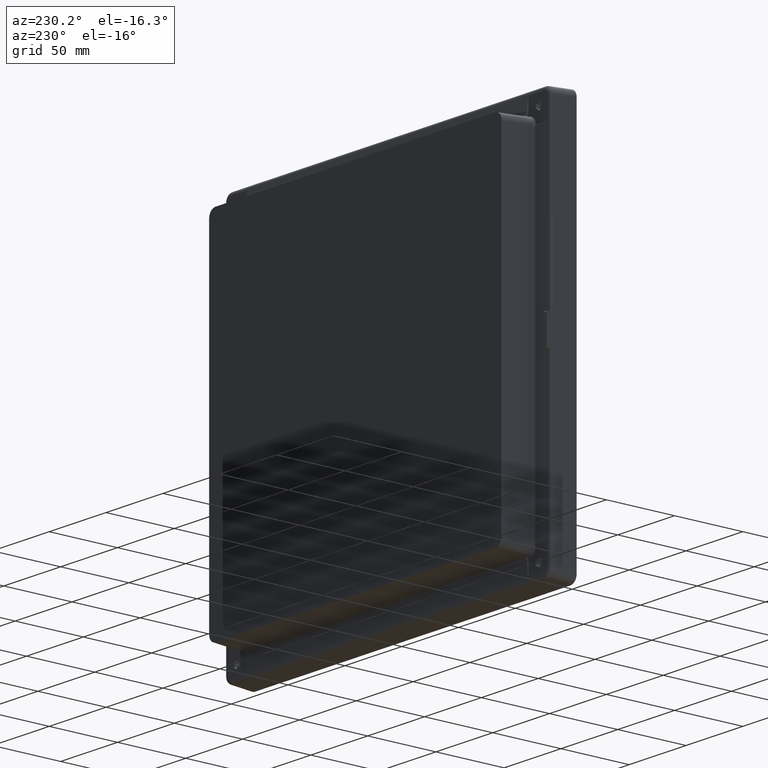
[diagram: clean part render]
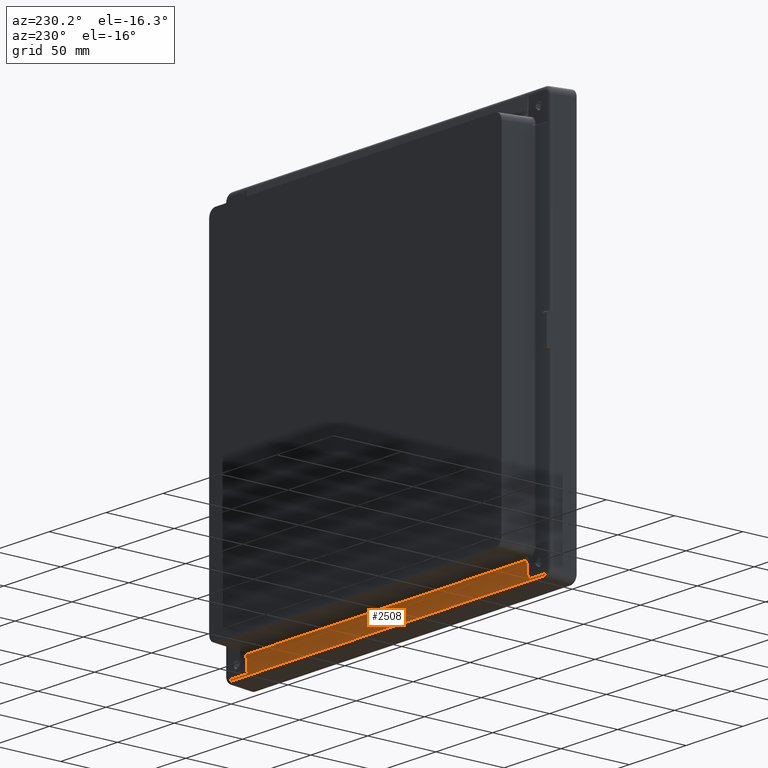
[diagram: same view with one face highlighted and labeled with its STEP entity id]
A machine part, auxiliary view. The second image highlights one B-rep face of the part: STEP entity #2508.
In plain terms, the highlighted planar face has unit normal (0, 0.9954, -0.0958).
Its self-contained STEP definition (entity closure, byte-faithful):
#6 = VERTEX_POINT ( 'NONE', #5151 ) ;
#7 = EDGE_CURVE ( 'NONE', #8, #6, #5180, .T. ) ;
#8 = VERTEX_POINT ( 'NONE', #5179 ) ;
#1545 = DIRECTION ( 'NONE',  ( 0.005022999675629500500, 0.09584454339323117400, 0.9953836411032690500 ) ) ;
#1546 = VECTOR ( 'NONE', #1545, 1000.000000000000100 ) ;
#1547 = CARTESIAN_POINT ( 'NONE',  ( -123.5068260029025900, 10.79896555757917300, -136.1783476383560000 ) ) ;
#1549 = LINE ( 'NONE', #1547, #1546 ) ;
#1555 = VERTEX_POINT ( 'NONE', #9857 ) ;
#1561 = VERTEX_POINT ( 'NONE', #9868 ) ;
#1564 = EDGE_CURVE ( 'NONE', #1555, #1561, #9901, .T. ) ;
#1565 = CARTESIAN_POINT ( 'NONE',  ( -123.5349119825286600, 10.26305314132461900, -141.7440108813360400 ) ) ;
#1580 = CARTESIAN_POINT ( 'NONE',  ( -123.4787400232765200, 11.33487797383372700, -130.6126843953760200 ) ) ;
#1985 = VERTEX_POINT ( 'NONE', #11020 ) ;
#2065 = EDGE_CURVE ( 'NONE', #5124, #1985, #11355, .T. ) ;
#2112 = VERTEX_POINT ( 'NONE', #11424 ) ;
#2116 = EDGE_CURVE ( 'NONE', #2112, #1985, #11426, .T. ) ;
#2145 = CARTESIAN_POINT ( 'NONE',  ( -138.0540984395500200, 10.26305314132461900, -141.7440108813360400 ) ) ;
#2147 = DIRECTION ( 'NONE',  ( -0.7054734583899082700, -0.06792936783698919100, -0.7054734583899308100 ) ) ;
#2148 = VECTOR ( 'NONE', #2147, 1000.000000000000000 ) ;
#2151 = CARTESIAN_POINT ( 'NONE',  ( -138.4889559685815100, 10.22118112375264300, -142.1788684103675300 ) ) ;
#2152 = LINE ( 'NONE', #2151, #2148 ) ;
#2480 = ORIENTED_EDGE ( 'NONE', *, *, #2065, .T. ) ;
#2482 = ORIENTED_EDGE ( 'NONE', *, *, #2116, .F. ) ;
#2483 = ORIENTED_EDGE ( 'NONE', *, *, #2484, .T. ) ;
#2484 = EDGE_CURVE ( 'NONE', #2112, #2485, #12249, .T. ) ;
#2485 = VERTEX_POINT ( 'NONE', #12245 ) ;
#2486 = ORIENTED_EDGE ( 'NONE', *, *, #2487, .T. ) ;
#2487 = EDGE_CURVE ( 'NONE', #2485, #1555, #12244, .T. ) ;
#2488 = ORIENTED_EDGE ( 'NONE', *, *, #1564, .T. ) ;
#2489 = ORIENTED_EDGE ( 'NONE', *, *, #2500, .T. ) ;
#2490 = ORIENTED_EDGE ( 'NONE', *, *, #7, .F. ) ;
#2491 = ORIENTED_EDGE ( 'NONE', *, *, #11711, .F. ) ;
#2500 = EDGE_CURVE ( 'NONE', #1561, #6, #12234, .T. ) ;
#2508 = ADVANCED_FACE ( 'NONE', ( #12281 ), #12279, .T. ) ;
#2509 = EDGE_LOOP ( 'NONE', ( #2480, #2482, #2483, #2486, #2488, #2489, #2490, #2491, #2574, #2576 ) ) ;
#2559 = DIRECTION ( 'NONE',  ( -1.000000000000000000, 0.0000000000000000000, 0.0000000000000000000 ) ) ;
#2560 = VECTOR ( 'NONE', #2559, 1000.000000000000000 ) ;
#2562 = CARTESIAN_POINT ( 'NONE',  ( -130.7945052110393400, 10.26305314132461900, -141.7440108813360400 ) ) ;
#2564 = LINE ( 'NONE', #2562, #2560 ) ;
#2574 = ORIENTED_EDGE ( 'NONE', *, *, #11795, .F. ) ;
#2576 = ORIENTED_EDGE ( 'NONE', *, *, #5113, .T. ) ;
#5107 = VERTEX_POINT ( 'NONE', #1565 ) ;
#5113 = EDGE_CURVE ( 'NONE', #5107, #5124, #1549, .T. ) ;
#5124 = VERTEX_POINT ( 'NONE', #1580 ) ;
#5151 = CARTESIAN_POINT ( 'NONE',  ( -137.9236508560150300, 10.16517196802754200, -142.7605457326960200 ) ) ;
#5170 = CARTESIAN_POINT ( 'NONE',  ( -137.9236508560150300, 10.16517196802754200, -142.7605457326960200 ) ) ;
#5171 = CARTESIAN_POINT ( 'NONE',  ( -138.0367413943828600, 10.16517322832616100, -142.7605326439944000 ) ) ;
#5172 = CARTESIAN_POINT ( 'NONE',  ( -138.2616409691924300, 10.16622243318247200, -142.7496362349431500 ) ) ;
#5173 = CARTESIAN_POINT ( 'NONE',  ( -138.5970484002153600, 10.17096336329997500, -142.7003997931438200 ) ) ;
#5174 = CARTESIAN_POINT ( 'NONE',  ( -138.8155336293878900, 10.17618133136953600, -142.6462091227899100 ) ) ;
#5175 = CARTESIAN_POINT ( 'NONE',  ( -138.9238134976130000, 10.17930910618067000, -142.6137259393990200 ) ) ;
#5179 = CARTESIAN_POINT ( 'NONE',  ( -138.9238134976130000, 10.17930910618067000, -142.6137259393990200 ) ) ;
#5180 = B_SPLINE_CURVE_WITH_KNOTS ( 'NONE', 3,
 ( #5175, #5174, #5173, #5172, #5171, #5170 ),
 .UNSPECIFIED., .F., .F.,
 ( 4, 1, 1, 4 ),
 ( 0.0000000000000000000, 0.0003380648914761136900, 0.0006761391734714644900, 0.001014204064946455700 ),
 .UNSPECIFIED. ) ;
#9857 = CARTESIAN_POINT ( 'NONE',  ( 138.9238134976130000, 10.17930910618054000, -142.6137259393989900 ) ) ;
#9868 = CARTESIAN_POINT ( 'NONE',  ( 137.9236508560150000, 10.16517196802754500, -142.7605457326959900 ) ) ;
#9895 = CARTESIAN_POINT ( 'NONE',  ( 137.9236508560150000, 10.16517196802754500, -142.7605457326959900 ) ) ;
#9896 = CARTESIAN_POINT ( 'NONE',  ( 138.0367407296397200, 10.16517382033964100, -142.7605264929709100 ) ) ;
#9897 = CARTESIAN_POINT ( 'NONE',  ( 138.2616395072291500, 10.16622378181383200, -142.7496222225056200 ) ) ;
#9898 = CARTESIAN_POINT ( 'NONE',  ( 138.5970510199825600, 10.17096205125017100, -142.7004134129717800 ) ) ;
#9899 = CARTESIAN_POINT ( 'NONE',  ( 138.8155347566396600, 10.17618075453876400, -142.6462151106932800 ) ) ;
#9900 = CARTESIAN_POINT ( 'NONE',  ( 138.9238134976130000, 10.17930910618054000, -142.6137259393989900 ) ) ;
#9901 = B_SPLINE_CURVE_WITH_KNOTS ( 'NONE', 3,
 ( #9900, #9899, #9898, #9897, #9896, #9895 ),
 .UNSPECIFIED., .F., .F.,
 ( 4, 1, 1, 4 ),
 ( 0.0000000000000000000, 0.0003380652494706765100, 0.0006761395220712261700, 0.001014204046914580000 ),
 .UNSPECIFIED. ) ;
#11020 = CARTESIAN_POINT ( 'NONE',  ( 123.4787400232764900, 11.33487797383372900, -130.6126843953759900 ) ) ;
#11348 = DIRECTION ( 'NONE',  ( 1.000000000000000000, 7.024381183553546100E-018, 1.123900989368567400E-016 ) ) ;
#11349 = VECTOR ( 'NONE', #11348, 1000.000000000000000 ) ;
#11355 = LINE ( 'NONE', #11356, #11349 ) ;
#11356 = CARTESIAN_POINT ( 'NONE',  ( -1.387778780781445700E-014, 11.33487797383372900, -130.6126843953759900 ) ) ;
#11418 = DIRECTION ( 'NONE',  ( -0.005022999675631982000, 0.09584454339323117400, 0.9953836411032690500 ) ) ;
#11419 = VECTOR ( 'NONE', #11418, 1000.000000000000100 ) ;
#11420 = CARTESIAN_POINT ( 'NONE',  ( 123.5068260029025700, 10.79896555757917500, -136.1783476383560000 ) ) ;
#11424 = CARTESIAN_POINT ( 'NONE',  ( 123.5349119825290000, 10.26305314132459900, -141.7440108813360100 ) ) ;
#11426 = LINE ( 'NONE', #11420, #11419 ) ;
#11711 = EDGE_CURVE ( 'NONE', #11713, #8, #2152, .T. ) ;
#11713 = VERTEX_POINT ( 'NONE', #2145 ) ;
#11795 = EDGE_CURVE ( 'NONE', #5107, #11713, #2564, .T. ) ;
#12234 = LINE ( 'NONE', #12284, #12283 ) ;
#12241 = DIRECTION ( 'NONE',  ( 0.7054734583899082700, -0.06792936783698919100, -0.7054734583899308100 ) ) ;
#12242 = VECTOR ( 'NONE', #12241, 1000.000000000000000 ) ;
#12243 = CARTESIAN_POINT ( 'NONE',  ( 138.4889559685815100, 10.22118112375251400, -142.1788684103675000 ) ) ;
#12244 = LINE ( 'NONE', #12243, #12242 ) ;
#12245 = CARTESIAN_POINT ( 'NONE',  ( 138.0540984395499900, 10.26305314132459900, -141.7440108813360100 ) ) ;
#12246 = DIRECTION ( 'NONE',  ( 1.000000000000000000, 0.0000000000000000000, 0.0000000000000000000 ) ) ;
#12247 = VECTOR ( 'NONE', #12246, 1000.000000000000000 ) ;
#12248 = CARTESIAN_POINT ( 'NONE',  ( 130.7945052110395100, 10.26305314132459900, -141.7440108813360100 ) ) ;
#12249 = LINE ( 'NONE', #12248, #12247 ) ;
#12275 = DIRECTION ( 'NONE',  ( 0.0000000000000000000, 0.09584575252022101100, 0.9953961983671790700 ) ) ;
#12276 = DIRECTION ( 'NONE',  ( 0.0000000000000000000, 0.9953961983671790700, -0.09584575252022101100 ) ) ;
#12277 = CARTESIAN_POINT ( 'NONE',  ( 143.3259222071700100, 10.00000000000000000, -144.4759222071699900 ) ) ;
#12278 = AXIS2_PLACEMENT_3D ( 'NONE', #12277, #12276, #12275 ) ;
#12279 = PLANE ( 'NONE',  #12278 ) ;
#12281 = FACE_OUTER_BOUND ( 'NONE', #2509, .T. ) ;
#12282 = DIRECTION ( 'NONE',  ( -1.000000000000000000, -1.257741848631723700E-017, -1.006193478905379000E-016 ) ) ;
#12283 = VECTOR ( 'NONE', #12282, 1000.000000000000000 ) ;
#12284 = CARTESIAN_POINT ( 'NONE',  ( -1.387778780781445700E-014, 10.16517196802754300, -142.7605457326959900 ) ) ;